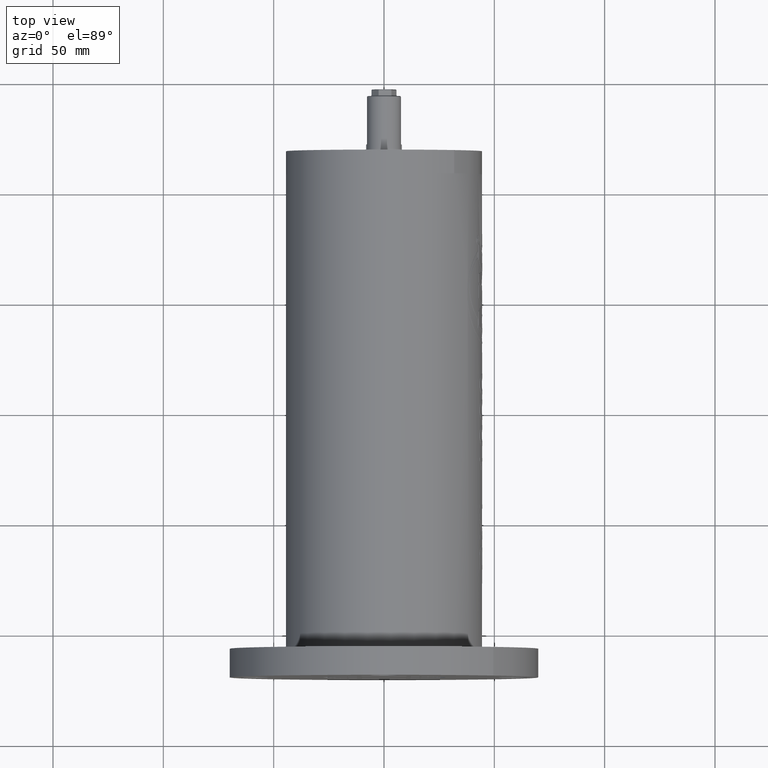
[diagram: clean part render]
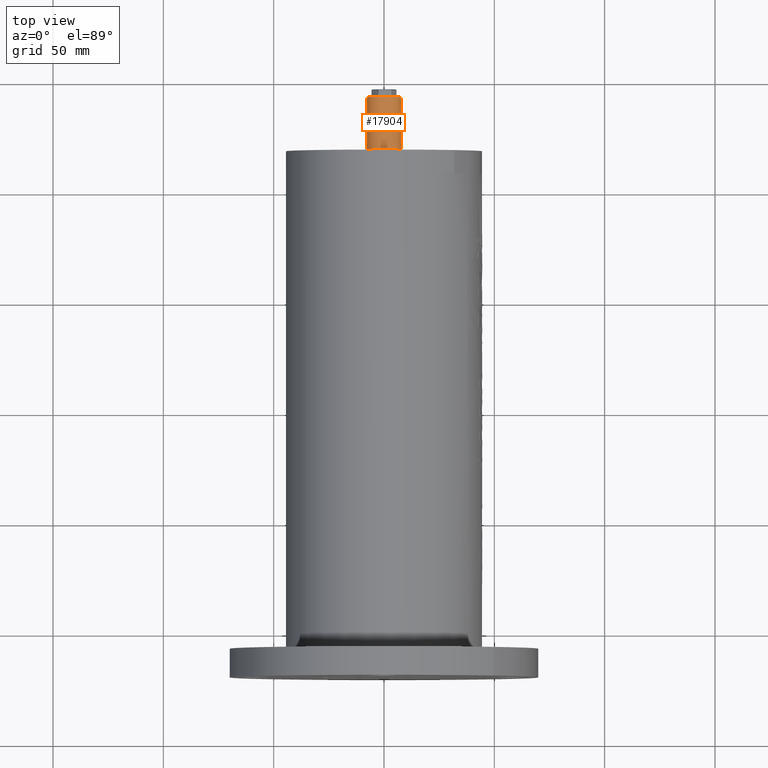
[diagram: same view with one face highlighted and labeled with its STEP entity id]
A machine part, top view. The second image highlights one B-rep face of the part: STEP entity #17904.
In plain terms, the highlighted cylindrical surface (edge-blend (fillet) strip) has radius 7.75 mm, axis along (-0, -1, 0).
Its self-contained STEP definition (entity closure, byte-faithful):
#241 = VECTOR ( 'NONE', #14031, 1000.000000000000000 ) ;
#510 = EDGE_CURVE ( 'NONE', #24384, #15159, #25254, .T. ) ;
#754 = CARTESIAN_POINT ( 'NONE',  ( 7.718915073174332300, 236.5000000000000300, 26.80656644649439400 ) ) ;
#1073 = LINE ( 'NONE', #35990, #22833 ) ;
#1119 = VERTEX_POINT ( 'NONE', #17587 ) ;
#1200 = LINE ( 'NONE', #18230, #11855 ) ;
#1386 = VERTEX_POINT ( 'NONE', #20941 ) ;
#1434 = CARTESIAN_POINT ( 'NONE',  ( -7.718915073173638700, 224.5000000000000000, 28.19343355350558900 ) ) ;
#1598 = CARTESIAN_POINT ( 'NONE',  ( -7.718915073173658200, 243.0000000000000300, 28.19343355350558500 ) ) ;
#1929 = ORIENTED_EDGE ( 'NONE', *, *, #3971, .T. ) ;
#2086 = DIRECTION ( 'NONE',  ( -6.840305812694026900E-017, -1.000000000000000000, 3.159273835260919100E-016 ) ) ;
#2378 = VECTOR ( 'NONE', #34880, 1000.000000000000000 ) ;
#2739 = CARTESIAN_POINT ( 'NONE',  ( -7.718915073173652900, 219.0000000000000000, 28.19343355350559600 ) ) ;
#3125 = VERTEX_POINT ( 'NONE', #754 ) ;
#3588 = DIRECTION ( 'NONE',  ( 6.840305812694026900E-017, 1.000000000000000000, -3.159273835260919100E-016 ) ) ;
#3971 = EDGE_CURVE ( 'NONE', #34768, #21020, #4299, .T. ) ;
#4299 = LINE ( 'NONE', #1598, #6520 ) ;
#4367 = CARTESIAN_POINT ( 'NONE',  ( -7.718915073173646700, 243.0000000000000300, 28.19343355350559200 ) ) ;
#4382 = VECTOR ( 'NONE', #21904, 1000.000000000000000 ) ;
#4471 = CARTESIAN_POINT ( 'NONE',  ( 7.718915073174325200, 224.5000000000000000, 26.80656644649440100 ) ) ;
#4486 = DIRECTION ( 'NONE',  ( -6.840305812694026900E-017, -1.000000000000000000, 3.159273835260919100E-016 ) ) ;
#4564 = CARTESIAN_POINT ( 'NONE',  ( 7.718915073174311900, 226.5000000000000000, 26.80656644649440800 ) ) ;
#4705 = LINE ( 'NONE', #8785, #29138 ) ;
#4832 = DIRECTION ( 'NONE',  ( -6.840305812694026900E-017, -1.000000000000000000, 3.159273835260919100E-016 ) ) ;
#5976 = CIRCLE ( 'NONE', #27392, 7.750000000000003600 ) ;
#6353 = ORIENTED_EDGE ( 'NONE', *, *, #12976, .F. ) ;
#6520 = VECTOR ( 'NONE', #4832, 1000.000000000000000 ) ;
#7166 = DIRECTION ( 'NONE',  ( -6.840305812694026900E-017, -1.000000000000000000, 3.159273835260919100E-016 ) ) ;
#7179 = CARTESIAN_POINT ( 'NONE',  ( 7.718915073174336800, 243.0000000000000300, 26.80656644649439700 ) ) ;
#7289 = DIRECTION ( 'NONE',  ( 0.9959890416998694600, 0.0000000000000000000, -0.08947529722652844400 ) ) ;
#7650 = DIRECTION ( 'NONE',  ( -6.840305812694026900E-017, -1.000000000000000000, 3.159273835260919100E-016 ) ) ;
#8081 = CARTESIAN_POINT ( 'NONE',  ( 3.362089476371403400E-013, 219.0000000000000000, 27.50000000000000700 ) ) ;
#8091 = ORIENTED_EDGE ( 'NONE', *, *, #27548, .T. ) ;
#8115 = AXIS2_PLACEMENT_3D ( 'NONE', #8081, #14039, #36337 ) ;
#8660 = DIRECTION ( 'NONE',  ( 6.840305812694026900E-017, 1.000000000000000000, -3.159273835260919100E-016 ) ) ;
#8785 = CARTESIAN_POINT ( 'NONE',  ( -7.718915073173658200, 243.0000000000000300, 28.19343355350558500 ) ) ;
#9014 = VERTEX_POINT ( 'NONE', #28946 ) ;
#9652 = CARTESIAN_POINT ( 'NONE',  ( -7.718915073173665300, 226.5000000000000000, 28.19343355350559600 ) ) ;
#10021 = CARTESIAN_POINT ( 'NONE',  ( 3.450682279569133600E-013, 243.0000000000000300, 27.49999999999999600 ) ) ;
#10117 = VECTOR ( 'NONE', #12747, 1000.000000000000000 ) ;
#10155 = ORIENTED_EDGE ( 'NONE', *, *, #16529, .T. ) ;
#10427 = CARTESIAN_POINT ( 'NONE',  ( -7.718915073173643100, 242.5000000000000300, 28.19343355350559600 ) ) ;
#10848 = VECTOR ( 'NONE', #4486, 1000.000000000000000 ) ;
#11310 = VERTEX_POINT ( 'NONE', #31214 ) ;
#11734 = LINE ( 'NONE', #15039, #2378 ) ;
#11855 = VECTOR ( 'NONE', #3588, 1000.000000000000000 ) ;
#11913 = CARTESIAN_POINT ( 'NONE',  ( 7.718915073174327900, 243.0000000000000300, 26.80656644649440400 ) ) ;
#12549 = VERTEX_POINT ( 'NONE', #10427 ) ;
#12747 = DIRECTION ( 'NONE',  ( -6.840305812694026900E-017, -1.000000000000000000, 3.159273835260919100E-016 ) ) ;
#12803 = EDGE_CURVE ( 'NONE', #16552, #12978, #33579, .T. ) ;
#12864 = DIRECTION ( 'NONE',  ( -6.840305812694026900E-017, -1.000000000000000000, 3.159273835260919100E-016 ) ) ;
#12976 = EDGE_CURVE ( 'NONE', #26863, #1119, #1200, .T. ) ;
#12978 = VERTEX_POINT ( 'NONE', #4564 ) ;
#13242 = EDGE_CURVE ( 'NONE', #11310, #15742, #30499, .T. ) ;
#13898 = ORIENTED_EDGE ( 'NONE', *, *, #23616, .F. ) ;
#14031 = DIRECTION ( 'NONE',  ( -6.840305812694026900E-017, -1.000000000000000000, 3.159273835260919100E-016 ) ) ;
#14039 = DIRECTION ( 'NONE',  ( 6.840305812694026900E-017, 1.000000000000000000, -3.159273835260919100E-016 ) ) ;
#14083 = LINE ( 'NONE', #33217, #35795 ) ;
#14932 = FACE_OUTER_BOUND ( 'NONE', #16182, .T. ) ;
#14955 = VECTOR ( 'NONE', #7650, 1000.000000000000000 ) ;
#15039 = CARTESIAN_POINT ( 'NONE',  ( -7.718915073173646700, 243.0000000000000300, 28.19343355350559200 ) ) ;
#15042 = LINE ( 'NONE', #15967, #4382 ) ;
#15159 = VERTEX_POINT ( 'NONE', #17684 ) ;
#15313 = LINE ( 'NONE', #22216, #241 ) ;
#15599 = EDGE_CURVE ( 'NONE', #26863, #9014, #14083, .T. ) ;
#15742 = VERTEX_POINT ( 'NONE', #24561 ) ;
#15967 = CARTESIAN_POINT ( 'NONE',  ( 7.718915073174336800, 243.0000000000000300, 26.80656644649439700 ) ) ;
#16182 = EDGE_LOOP ( 'NONE', ( #27927, #8091, #36735, #6353, #17920, #13898, #10155, #1929, #20184, #30346, #16402, #29482, #22146, #30823, #31808, #36557 ) ) ;
#16402 = ORIENTED_EDGE ( 'NONE', *, *, #33458, .F. ) ;
#16529 = EDGE_CURVE ( 'NONE', #20405, #34768, #11734, .T. ) ;
#16552 = VERTEX_POINT ( 'NONE', #4471 ) ;
#17587 = CARTESIAN_POINT ( 'NONE',  ( -7.718915073173658200, 238.5000000000000300, 28.19343355350559200 ) ) ;
#17684 = CARTESIAN_POINT ( 'NONE',  ( 7.718915073174324300, 219.0000000000000000, 26.80656644649440100 ) ) ;
#17904 = ADVANCED_FACE ( 'NONE', ( #14932 ), #19855, .T. ) ;
#17920 = ORIENTED_EDGE ( 'NONE', *, *, #15599, .T. ) ;
#18230 = CARTESIAN_POINT ( 'NONE',  ( -7.718915073173658200, 243.0000000000000300, 28.19343355350558500 ) ) ;
#18570 = LINE ( 'NONE', #33168, #25234 ) ;
#19392 = VECTOR ( 'NONE', #20008, 1000.000000000000000 ) ;
#19855 = CYLINDRICAL_SURFACE ( 'NONE', #27063, 7.750000000000003600 ) ;
#20008 = DIRECTION ( 'NONE',  ( 6.840305812694026900E-017, 1.000000000000000000, -3.159273835260919100E-016 ) ) ;
#20184 = ORIENTED_EDGE ( 'NONE', *, *, #27219, .T. ) ;
#20405 = VERTEX_POINT ( 'NONE', #20959 ) ;
#20941 = CARTESIAN_POINT ( 'NONE',  ( 7.718915073174326100, 238.5000000000000300, 26.80656644649439400 ) ) ;
#20959 = CARTESIAN_POINT ( 'NONE',  ( -7.718915073173652000, 230.5000000000000000, 28.19343355350558500 ) ) ;
#21020 = VERTEX_POINT ( 'NONE', #1434 ) ;
#21872 = DIRECTION ( 'NONE',  ( -6.840305812694026900E-017, -1.000000000000000000, 3.159273835260919100E-016 ) ) ;
#21904 = DIRECTION ( 'NONE',  ( -6.840305812694026900E-017, -1.000000000000000000, 3.159273835260919100E-016 ) ) ;
#22146 = ORIENTED_EDGE ( 'NONE', *, *, #33749, .F. ) ;
#22216 = CARTESIAN_POINT ( 'NONE',  ( 7.718915073174336800, 243.0000000000000300, 26.80656644649439700 ) ) ;
#22833 = VECTOR ( 'NONE', #21872, 1000.000000000000000 ) ;
#23616 = EDGE_CURVE ( 'NONE', #20405, #9014, #4705, .T. ) ;
#23813 = DIRECTION ( 'NONE',  ( -0.9959890416998694600, 0.0000000000000000000, 0.08947529722652844400 ) ) ;
#24307 = DIRECTION ( 'NONE',  ( -6.840305812694026900E-017, -1.000000000000000000, 3.159273835260919100E-016 ) ) ;
#24384 = VERTEX_POINT ( 'NONE', #2739 ) ;
#24561 = CARTESIAN_POINT ( 'NONE',  ( 7.718915073174326100, 230.5000000000000000, 26.80656644649439700 ) ) ;
#24731 = EDGE_CURVE ( 'NONE', #1386, #3125, #31352, .T. ) ;
#25234 = VECTOR ( 'NONE', #35759, 1000.000000000000000 ) ;
#25254 = CIRCLE ( 'NONE', #8115, 7.750000000000003600 ) ;
#26388 = EDGE_CURVE ( 'NONE', #12549, #1119, #33965, .T. ) ;
#26586 = EDGE_CURVE ( 'NONE', #27130, #1386, #15313, .T. ) ;
#26863 = VERTEX_POINT ( 'NONE', #26973 ) ;
#26973 = CARTESIAN_POINT ( 'NONE',  ( -7.718915073173651100, 236.5000000000000300, 28.19343355350559200 ) ) ;
#27063 = AXIS2_PLACEMENT_3D ( 'NONE', #10021, #7166, #23813 ) ;
#27130 = VERTEX_POINT ( 'NONE', #33026 ) ;
#27144 = CARTESIAN_POINT ( 'NONE',  ( 7.718915073174327900, 243.0000000000000300, 26.80656644649440400 ) ) ;
#27219 = EDGE_CURVE ( 'NONE', #21020, #24384, #1073, .T. ) ;
#27392 = AXIS2_PLACEMENT_3D ( 'NONE', #30241, #24307, #7289 ) ;
#27548 = EDGE_CURVE ( 'NONE', #27130, #12549, #5976, .T. ) ;
#27881 = LINE ( 'NONE', #7179, #10117 ) ;
#27927 = ORIENTED_EDGE ( 'NONE', *, *, #26586, .F. ) ;
#28946 = CARTESIAN_POINT ( 'NONE',  ( -7.718915073173659100, 232.5000000000000000, 28.19343355350558500 ) ) ;
#29138 = VECTOR ( 'NONE', #8660, 1000.000000000000000 ) ;
#29482 = ORIENTED_EDGE ( 'NONE', *, *, #12803, .T. ) ;
#30155 = EDGE_CURVE ( 'NONE', #3125, #11310, #15042, .T. ) ;
#30241 = CARTESIAN_POINT ( 'NONE',  ( 3.450211727938466500E-013, 242.5000000000000300, 27.49999999999999600 ) ) ;
#30346 = ORIENTED_EDGE ( 'NONE', *, *, #510, .T. ) ;
#30499 = LINE ( 'NONE', #36285, #14955 ) ;
#30823 = ORIENTED_EDGE ( 'NONE', *, *, #13242, .F. ) ;
#31214 = CARTESIAN_POINT ( 'NONE',  ( 7.718915073174326100, 232.5000000000000000, 26.80656644649439700 ) ) ;
#31352 = LINE ( 'NONE', #27144, #35712 ) ;
#31808 = ORIENTED_EDGE ( 'NONE', *, *, #30155, .F. ) ;
#33026 = CARTESIAN_POINT ( 'NONE',  ( 7.718915073174333200, 242.5000000000000300, 26.80656644649440100 ) ) ;
#33168 = CARTESIAN_POINT ( 'NONE',  ( 7.718915073174336800, 243.0000000000000300, 26.80656644649439700 ) ) ;
#33217 = CARTESIAN_POINT ( 'NONE',  ( -7.718915073173646700, 243.0000000000000300, 28.19343355350559200 ) ) ;
#33458 = EDGE_CURVE ( 'NONE', #16552, #15159, #27881, .T. ) ;
#33579 = LINE ( 'NONE', #11913, #19392 ) ;
#33749 = EDGE_CURVE ( 'NONE', #15742, #12978, #18570, .T. ) ;
#33965 = LINE ( 'NONE', #4367, #10848 ) ;
#34768 = VERTEX_POINT ( 'NONE', #9652 ) ;
#34880 = DIRECTION ( 'NONE',  ( -6.840305812694026900E-017, -1.000000000000000000, 3.159273835260919100E-016 ) ) ;
#35712 = VECTOR ( 'NONE', #12864, 1000.000000000000000 ) ;
#35759 = DIRECTION ( 'NONE',  ( -6.840305812694026900E-017, -1.000000000000000000, 3.159273835260919100E-016 ) ) ;
#35795 = VECTOR ( 'NONE', #2086, 1000.000000000000000 ) ;
#35990 = CARTESIAN_POINT ( 'NONE',  ( -7.718915073173646700, 243.0000000000000300, 28.19343355350559200 ) ) ;
#36285 = CARTESIAN_POINT ( 'NONE',  ( 7.718915073174327900, 243.0000000000000300, 26.80656644649440400 ) ) ;
#36337 = DIRECTION ( 'NONE',  ( 0.9959890416998694600, 0.0000000000000000000, -0.08947529722652844400 ) ) ;
#36557 = ORIENTED_EDGE ( 'NONE', *, *, #24731, .F. ) ;
#36735 = ORIENTED_EDGE ( 'NONE', *, *, #26388, .T. ) ;